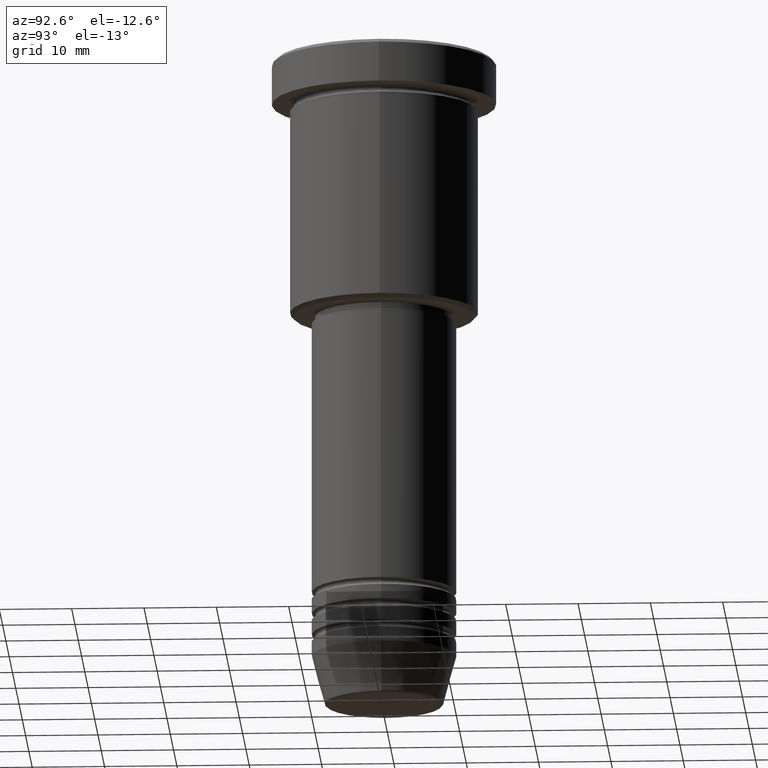
[diagram: clean part render]
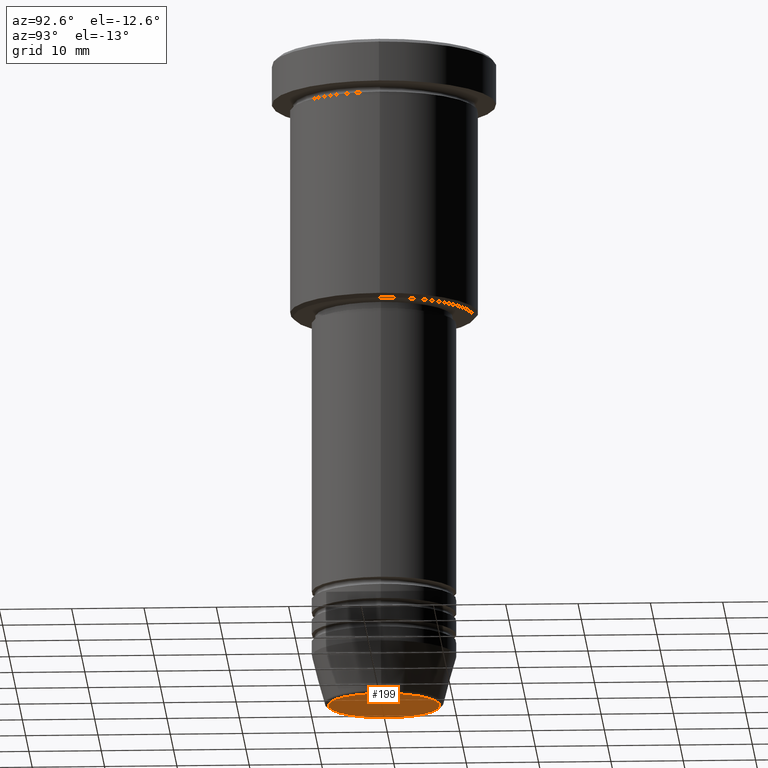
[diagram: same view with one face highlighted and labeled with its STEP entity id]
A machine part, auxiliary view. The second image highlights one B-rep face of the part: STEP entity #199.
In plain terms, the highlighted planar face has unit normal (0, -0, 1).
Its self-contained STEP definition (entity closure, byte-faithful):
#63 = EDGE_LOOP ( 'NONE', ( #184, #500 ) ) ;
#133 = DIRECTION ( 'NONE',  ( 1.000000000000000000, 0.000000000000000000, 0.000000000000000000 ) ) ;
#145 = CARTESIAN_POINT ( 'NONE',  ( 0.000000000000000000, 0.000000000000000000, -91.00000000000000000 ) ) ;
#169 = DIRECTION ( 'NONE',  ( 0.000000000000000000, 0.000000000000000000, -1.000000000000000000 ) ) ;
#184 = ORIENTED_EDGE ( 'NONE', *, *, #884, .T. ) ;
#199 = ADVANCED_FACE ( 'NONE', ( #633 ), #881, .F. ) ;
#209 = CIRCLE ( 'NONE', #1119, 7.740692158992654726 ) ;
#221 = EDGE_CURVE ( 'NONE', #247, #798, #209, .T. ) ;
#247 = VERTEX_POINT ( 'NONE', #642 ) ;
#304 = DIRECTION ( 'NONE',  ( 0.000000000000000000, 0.000000000000000000, -1.000000000000000000 ) ) ;
#323 = AXIS2_PLACEMENT_3D ( 'NONE', #145, #992, #133 ) ;
#408 = CARTESIAN_POINT ( 'NONE',  ( 0.000000000000000000, 0.000000000000000000, -91.00000000000000000 ) ) ;
#496 = AXIS2_PLACEMENT_3D ( 'NONE', #866, #304, #1125 ) ;
#500 = ORIENTED_EDGE ( 'NONE', *, *, #221, .T. ) ;
#633 = FACE_OUTER_BOUND ( 'NONE', #63, .T. ) ;
#642 = CARTESIAN_POINT ( 'NONE',  ( -7.740692158992654726, 9.775343368540039135E-16, -91.00000000000000000 ) ) ;
#690 = DIRECTION ( 'NONE',  ( 1.000000000000000000, 0.000000000000000000, 0.000000000000000000 ) ) ;
#798 = VERTEX_POINT ( 'NONE', #1115 ) ;
#866 = CARTESIAN_POINT ( 'NONE',  ( 0.000000000000000000, 0.000000000000000000, -91.00000000000000000 ) ) ;
#881 = PLANE ( 'NONE',  #323 ) ;
#884 = EDGE_CURVE ( 'NONE', #798, #247, #893, .T. ) ;
#893 = CIRCLE ( 'NONE', #496, 7.740692158992654726 ) ;
#992 = DIRECTION ( 'NONE',  ( 0.000000000000000000, -0.000000000000000000, 1.000000000000000000 ) ) ;
#1115 = CARTESIAN_POINT ( 'NONE',  ( 7.740692158992654726, 0.000000000000000000, -91.00000000000000000 ) ) ;
#1119 = AXIS2_PLACEMENT_3D ( 'NONE', #408, #169, #690 ) ;
#1125 = DIRECTION ( 'NONE',  ( 1.000000000000000000, 0.000000000000000000, 0.000000000000000000 ) ) ;